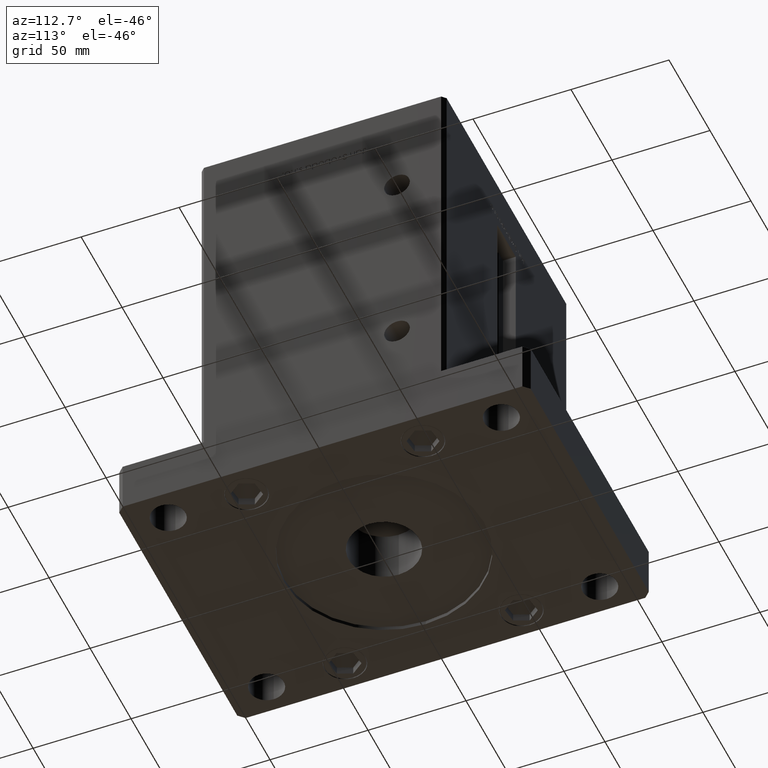
[diagram: clean part render]
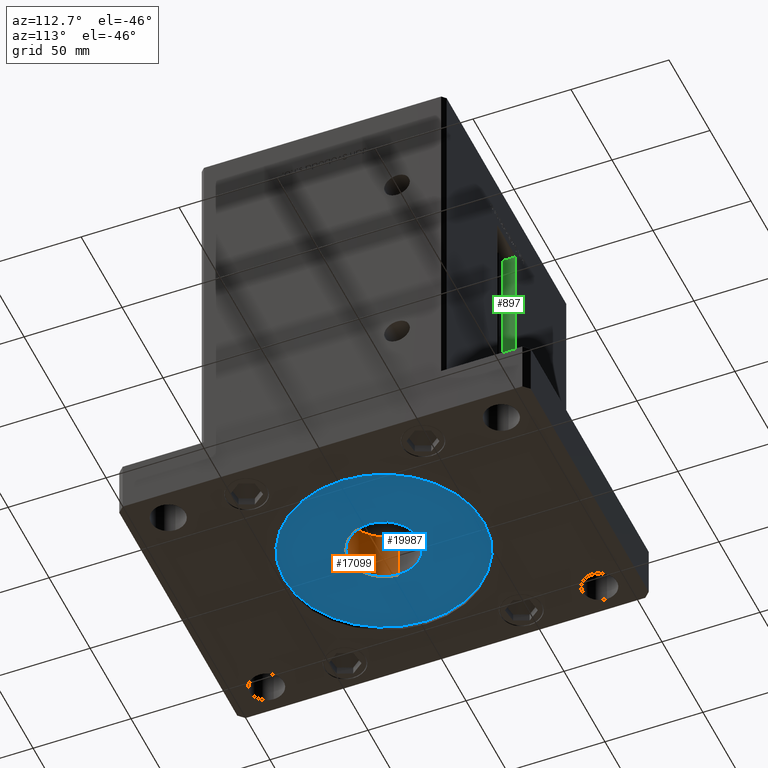
[diagram: same view with three faces highlighted in distinct colors, each labeled with its STEP entity id]
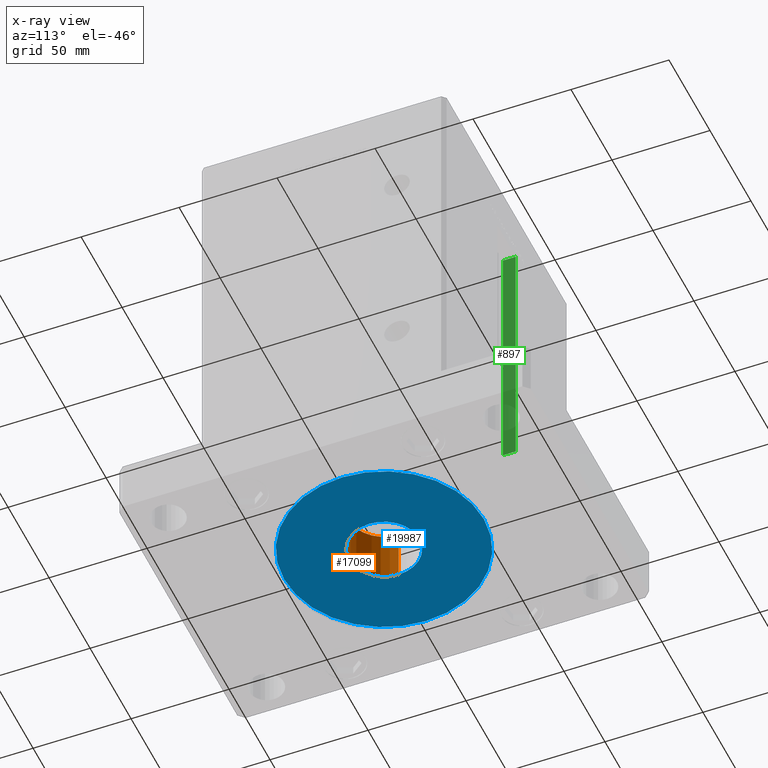
[diagram: x-ray of the same camera — body ghosted, the three highlighted faces saturated]
A machine part, auxiliary view with three faces highlighted in distinct colors.
The next image is the same camera in x-ray (body ghosted, the three faces saturated) — at least one of them is partly hidden behind the body in this view.
Their STEP definitions:

[orange] entity #17099 — the highlighted cylindrical surface (partial cylindrical patch) has radius 18 mm, axis along (0, 0, 1).
#558 = FACE_OUTER_BOUND ( 'NONE', #40443, .T. ) ;
#946 = AXIS2_PLACEMENT_3D ( 'NONE', #24459, #41028, #3832 ) ;
#3832 = DIRECTION ( 'NONE',  ( 1.000000000000000000, 0.000000000000000000, 0.000000000000000000 ) ) ;
#4957 = ORIENTED_EDGE ( 'NONE', *, *, #42597, .F. ) ;
#6816 = EDGE_CURVE ( 'NONE', #35421, #40210, #51864, .T. ) ;
#7916 = CYLINDRICAL_SURFACE ( 'NONE', #946, 18.00000000000000000 ) ;
#8210 = ORIENTED_EDGE ( 'NONE', *, *, #20155, .T. ) ;
#8406 = CIRCLE ( 'NONE', #48309, 18.00000000000000000 ) ;
#10888 = CARTESIAN_POINT ( 'NONE',  ( 0.000000000000000000, 0.000000000000000000, 2.000000000000000000 ) ) ;
#12122 = ORIENTED_EDGE ( 'NONE', *, *, #6816, .F. ) ;
#15922 = DIRECTION ( 'NONE',  ( 0.000000000000000000, 0.000000000000000000, 1.000000000000000000 ) ) ;
#17099 = ADVANCED_FACE ( 'NONE', ( #558 ), #7916, .F. ) ;
#17645 = EDGE_CURVE ( 'NONE', #33535, #45501, #20544, .T. ) ;
#20155 = EDGE_CURVE ( 'NONE', #45501, #40210, #45104, .T. ) ;
#20544 = LINE ( 'NONE', #37090, #50357 ) ;
#21519 = CARTESIAN_POINT ( 'NONE',  ( 18.00000000000000000, 0.000000000000000000, 2.000000000000000000 ) ) ;
#21689 = AXIS2_PLACEMENT_3D ( 'NONE', #49030, #15922, #44959 ) ;
#24459 = CARTESIAN_POINT ( 'NONE',  ( 0.000000000000000000, 0.000000000000000000, 0.000000000000000000 ) ) ;
#24563 = VECTOR ( 'NONE', #36121, 1000.000000000000000 ) ;
#30456 = CARTESIAN_POINT ( 'NONE',  ( 18.00000000000000000, 0.000000000000000000, 28.99999999999999645 ) ) ;
#33535 = VERTEX_POINT ( 'NONE', #36029 ) ;
#35421 = VERTEX_POINT ( 'NONE', #21519 ) ;
#36029 = CARTESIAN_POINT ( 'NONE',  ( -18.00000000000000000, 2.204364238465235428E-15, 2.000000000000000000 ) ) ;
#36121 = DIRECTION ( 'NONE',  ( -0.000000000000000000, -0.000000000000000000, 1.000000000000000000 ) ) ;
#37090 = CARTESIAN_POINT ( 'NONE',  ( -18.00000000000000000, 2.204364238465235428E-15, 0.000000000000000000 ) ) ;
#40210 = VERTEX_POINT ( 'NONE', #30456 ) ;
#40443 = EDGE_LOOP ( 'NONE', ( #4957, #42481, #8210, #12122 ) ) ;
#41028 = DIRECTION ( 'NONE',  ( -0.000000000000000000, -0.000000000000000000, 1.000000000000000000 ) ) ;
#42481 = ORIENTED_EDGE ( 'NONE', *, *, #17645, .T. ) ;
#42597 = EDGE_CURVE ( 'NONE', #33535, #35421, #8406, .T. ) ;
#43720 = DIRECTION ( 'NONE',  ( -1.000000000000000000, 0.000000000000000000, 0.000000000000000000 ) ) ;
#44959 = DIRECTION ( 'NONE',  ( 1.000000000000000000, 0.000000000000000000, 0.000000000000000000 ) ) ;
#45104 = CIRCLE ( 'NONE', #21689, 18.00000000000000000 ) ;
#45501 = VERTEX_POINT ( 'NONE', #46452 ) ;
#46452 = CARTESIAN_POINT ( 'NONE',  ( -18.00000000000000000, 2.204364238465235428E-15, 28.99999999999999645 ) ) ;
#47519 = DIRECTION ( 'NONE',  ( -0.000000000000000000, -0.000000000000000000, 1.000000000000000000 ) ) ;
#48309 = AXIS2_PLACEMENT_3D ( 'NONE', #10888, #47519, #43720 ) ;
#49030 = CARTESIAN_POINT ( 'NONE',  ( 0.000000000000000000, 0.000000000000000000, 28.99999999999999645 ) ) ;
#50357 = VECTOR ( 'NONE', #53635, 1000.000000000000000 ) ;
#51864 = LINE ( 'NONE', #52666, #24563 ) ;
#52666 = CARTESIAN_POINT ( 'NONE',  ( 18.00000000000000000, 0.000000000000000000, 0.000000000000000000 ) ) ;
#53635 = DIRECTION ( 'NONE',  ( -0.000000000000000000, -0.000000000000000000, 1.000000000000000000 ) ) ;

[blue] entity #19987 — the highlighted planar face has unit normal (0, 0, -1).
#232 = EDGE_LOOP ( 'NONE', ( #7358, #24172 ) ) ;
#2551 = DIRECTION ( 'NONE',  ( 0.000000000000000000, 0.000000000000000000, -1.000000000000000000 ) ) ;
#2644 = EDGE_CURVE ( 'NONE', #47772, #31829, #8852, .T. ) ;
#7358 = ORIENTED_EDGE ( 'NONE', *, *, #32041, .T. ) ;
#8406 = CIRCLE ( 'NONE', #48309, 18.00000000000000000 ) ;
#8852 = CIRCLE ( 'NONE', #47006, 51.00000000000000000 ) ;
#9185 = CARTESIAN_POINT ( 'NONE',  ( 0.000000000000000000, 0.000000000000000000, 2.000000000000000000 ) ) ;
#9926 = CARTESIAN_POINT ( 'NONE',  ( 0.000000000000000000, 0.000000000000000000, 2.000000000000000000 ) ) ;
#10787 = DIRECTION ( 'NONE',  ( -1.000000000000000000, 0.000000000000000000, -0.000000000000000000 ) ) ;
#10888 = CARTESIAN_POINT ( 'NONE',  ( 0.000000000000000000, 0.000000000000000000, 2.000000000000000000 ) ) ;
#11959 = ORIENTED_EDGE ( 'NONE', *, *, #2644, .T. ) ;
#12589 = AXIS2_PLACEMENT_3D ( 'NONE', #9185, #2551, #13246 ) ;
#13246 = DIRECTION ( 'NONE',  ( -1.000000000000000000, 0.000000000000000000, 0.000000000000000000 ) ) ;
#14247 = CARTESIAN_POINT ( 'NONE',  ( 51.00000000000000000, 6.245698675651500444E-15, 2.000000000000000000 ) ) ;
#18661 = CIRCLE ( 'NONE', #12589, 51.00000000000000000 ) ;
#19987 = ADVANCED_FACE ( 'NONE', ( #43102, #38755 ), #31400, .T. ) ;
#20339 = CIRCLE ( 'NONE', #32491, 18.00000000000000000 ) ;
#21519 = CARTESIAN_POINT ( 'NONE',  ( 18.00000000000000000, 0.000000000000000000, 2.000000000000000000 ) ) ;
#23286 = CARTESIAN_POINT ( 'NONE',  ( -51.00000000000000000, 0.000000000000000000, 2.000000000000000000 ) ) ;
#23336 = DIRECTION ( 'NONE',  ( 0.000000000000000000, 0.000000000000000000, -1.000000000000000000 ) ) ;
#24172 = ORIENTED_EDGE ( 'NONE', *, *, #42597, .T. ) ;
#25253 = ORIENTED_EDGE ( 'NONE', *, *, #50593, .T. ) ;
#26459 = DIRECTION ( 'NONE',  ( -1.000000000000000000, 0.000000000000000000, 0.000000000000000000 ) ) ;
#26875 = AXIS2_PLACEMENT_3D ( 'NONE', #35215, #39283, #10787 ) ;
#27912 = EDGE_LOOP ( 'NONE', ( #25253, #11959 ) ) ;
#31400 = PLANE ( 'NONE',  #26875 ) ;
#31829 = VERTEX_POINT ( 'NONE', #23286 ) ;
#32041 = EDGE_CURVE ( 'NONE', #35421, #33535, #20339, .T. ) ;
#32491 = AXIS2_PLACEMENT_3D ( 'NONE', #9926, #50623, #26459 ) ;
#33535 = VERTEX_POINT ( 'NONE', #36029 ) ;
#34824 = DIRECTION ( 'NONE',  ( -1.000000000000000000, 0.000000000000000000, 0.000000000000000000 ) ) ;
#35215 = CARTESIAN_POINT ( 'NONE',  ( 0.000000000000000000, 0.000000000000000000, 2.000000000000000000 ) ) ;
#35421 = VERTEX_POINT ( 'NONE', #21519 ) ;
#36029 = CARTESIAN_POINT ( 'NONE',  ( -18.00000000000000000, 2.204364238465235428E-15, 2.000000000000000000 ) ) ;
#38755 = FACE_BOUND ( 'NONE', #232, .T. ) ;
#39283 = DIRECTION ( 'NONE',  ( 0.000000000000000000, 0.000000000000000000, -1.000000000000000000 ) ) ;
#42597 = EDGE_CURVE ( 'NONE', #33535, #35421, #8406, .T. ) ;
#43102 = FACE_OUTER_BOUND ( 'NONE', #27912, .T. ) ;
#43720 = DIRECTION ( 'NONE',  ( -1.000000000000000000, 0.000000000000000000, 0.000000000000000000 ) ) ;
#47006 = AXIS2_PLACEMENT_3D ( 'NONE', #52895, #23336, #34824 ) ;
#47519 = DIRECTION ( 'NONE',  ( -0.000000000000000000, -0.000000000000000000, 1.000000000000000000 ) ) ;
#47772 = VERTEX_POINT ( 'NONE', #14247 ) ;
#48309 = AXIS2_PLACEMENT_3D ( 'NONE', #10888, #47519, #43720 ) ;
#50593 = EDGE_CURVE ( 'NONE', #31829, #47772, #18661, .T. ) ;
#50623 = DIRECTION ( 'NONE',  ( -0.000000000000000000, -0.000000000000000000, 1.000000000000000000 ) ) ;
#52895 = CARTESIAN_POINT ( 'NONE',  ( 0.000000000000000000, 0.000000000000000000, 2.000000000000000000 ) ) ;

[green] entity #897 — the highlighted planar face has unit normal (-1, 0, 0).
#897 = ADVANCED_FACE ( 'NONE', ( #3518 ), #53461, .F. ) ;
#1509 = CARTESIAN_POINT ( 'NONE',  ( -11.25000000000000178, 62.49999999999999289, 132.0000000000000000 ) ) ;
#3217 = LINE ( 'NONE', #48550, #48192 ) ;
#3518 = FACE_OUTER_BOUND ( 'NONE', #31791, .T. ) ;
#6049 = ORIENTED_EDGE ( 'NONE', *, *, #40289, .F. ) ;
#9064 = EDGE_CURVE ( 'NONE', #36558, #11534, #20251, .T. ) ;
#10726 = LINE ( 'NONE', #15076, #51174 ) ;
#11376 = AXIS2_PLACEMENT_3D ( 'NONE', #35849, #23624, #28499 ) ;
#11534 = VERTEX_POINT ( 'NONE', #30999 ) ;
#11847 = DIRECTION ( 'NONE',  ( -0.000000000000000000, -0.000000000000000000, 1.000000000000000000 ) ) ;
#13129 = ORIENTED_EDGE ( 'NONE', *, *, #20350, .F. ) ;
#14702 = VERTEX_POINT ( 'NONE', #23910 ) ;
#15076 = CARTESIAN_POINT ( 'NONE',  ( -11.25000000000000178, 0.000000000000000000, 132.0000000000000000 ) ) ;
#15602 = DIRECTION ( 'NONE',  ( -0.000000000000000000, -0.000000000000000000, 1.000000000000000000 ) ) ;
#19334 = ORIENTED_EDGE ( 'NONE', *, *, #9064, .F. ) ;
#20251 = LINE ( 'NONE', #49017, #35927 ) ;
#20350 = EDGE_CURVE ( 'NONE', #11534, #33807, #10726, .T. ) ;
#23624 = DIRECTION ( 'NONE',  ( -1.000000000000000000, 0.000000000000000000, 0.000000000000000000 ) ) ;
#23910 = CARTESIAN_POINT ( 'NONE',  ( -11.25000000000000178, 62.49999999999999289, 0.000000000000000000 ) ) ;
#28055 = LINE ( 'NONE', #44900, #39588 ) ;
#28451 = DIRECTION ( 'NONE',  ( -0.000000000000000000, -1.000000000000000000, -0.000000000000000000 ) ) ;
#28499 = DIRECTION ( 'NONE',  ( 0.000000000000000000, 0.000000000000000000, 1.000000000000000000 ) ) ;
#30999 = CARTESIAN_POINT ( 'NONE',  ( -11.25000000000000178, 55.99999999999999289, 132.0000000000000000 ) ) ;
#31791 = EDGE_LOOP ( 'NONE', ( #19334, #6049, #51095, #13129 ) ) ;
#33807 = VERTEX_POINT ( 'NONE', #1509 ) ;
#35849 = CARTESIAN_POINT ( 'NONE',  ( -11.25000000000000178, 55.99999999999999289, 0.000000000000000000 ) ) ;
#35927 = VECTOR ( 'NONE', #11847, 1000.000000000000000 ) ;
#36221 = DIRECTION ( 'NONE',  ( 0.000000000000000000, 1.000000000000000000, 0.000000000000000000 ) ) ;
#36558 = VERTEX_POINT ( 'NONE', #49170 ) ;
#39588 = VECTOR ( 'NONE', #15602, 1000.000000000000000 ) ;
#40289 = EDGE_CURVE ( 'NONE', #14702, #36558, #3217, .T. ) ;
#41600 = EDGE_CURVE ( 'NONE', #14702, #33807, #28055, .T. ) ;
#44900 = CARTESIAN_POINT ( 'NONE',  ( -11.25000000000000178, 62.49999999999999289, 0.000000000000000000 ) ) ;
#48192 = VECTOR ( 'NONE', #28451, 1000.000000000000000 ) ;
#48550 = CARTESIAN_POINT ( 'NONE',  ( -11.25000000000000178, 55.99999999999999289, 0.000000000000000000 ) ) ;
#49017 = CARTESIAN_POINT ( 'NONE',  ( -11.25000000000000178, 55.99999999999999289, 0.000000000000000000 ) ) ;
#49170 = CARTESIAN_POINT ( 'NONE',  ( -11.25000000000000178, 55.99999999999999289, 0.000000000000000000 ) ) ;
#51095 = ORIENTED_EDGE ( 'NONE', *, *, #41600, .T. ) ;
#51174 = VECTOR ( 'NONE', #36221, 1000.000000000000000 ) ;
#53461 = PLANE ( 'NONE',  #11376 ) ;